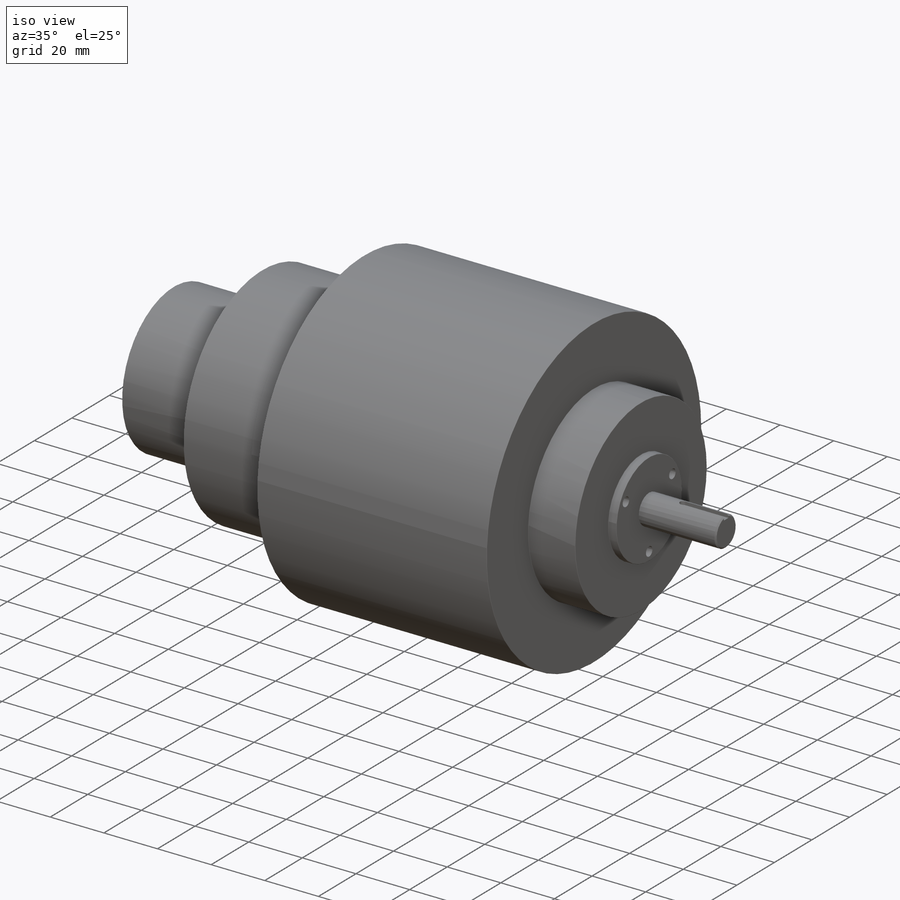
[diagram: iso view]
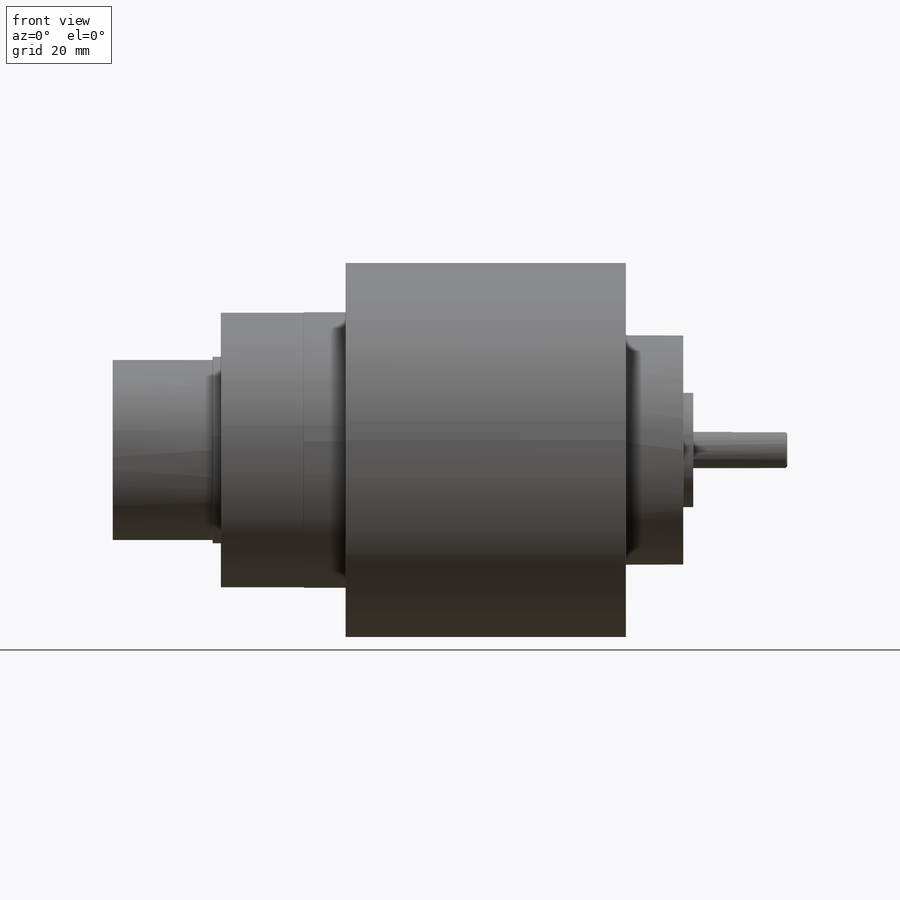
[diagram: front view]
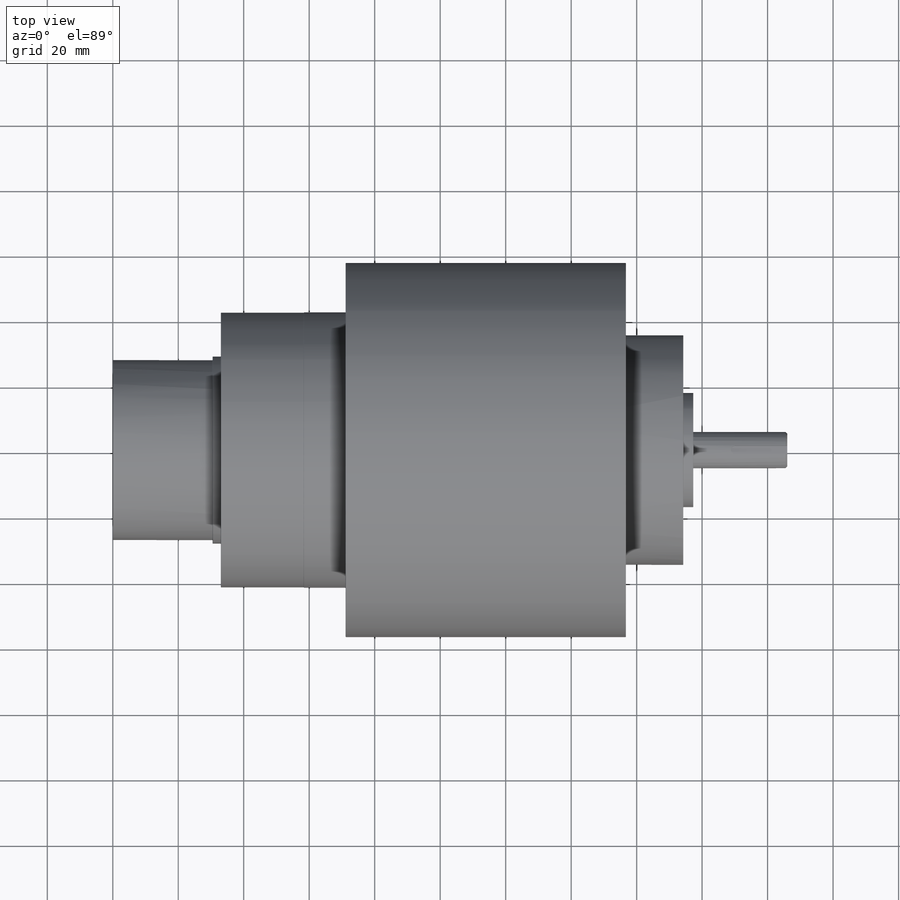
[diagram: top view]
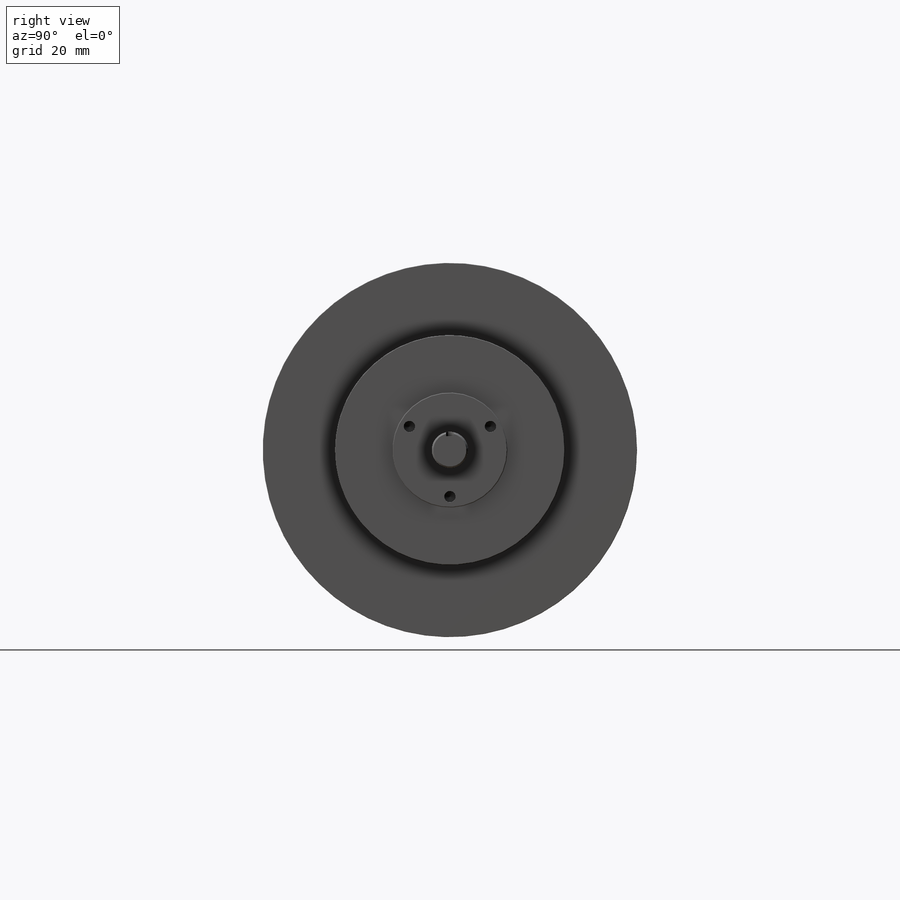
[diagram: right view]
SOLIDWORKS PART (.sldprt)
format: sldprt  version: not decoded by parser v0  size: 513,024 bytes
history: native  units: mm
features: sketch x14, plane x9, extrude x6, cut_extrude x4, hole x2, thread x2, pattern_circular x2, material x1, fillet x1, chamfer x1 (+16 scaffold rows collapsed)
feature tree (58):
  scaffold x16  (default folders/planes/origin — collapsed)
  material  "Material <not specified>"
  plane  "A"  Offset=205.994mm
  plane  "F"  Offset=33.02mm
  sketch  "E"  dims[D1=57.15mm]
  extrude  "Boss-Extrude1"  [1 undecoded]
  sketch  "X"  dims[D2=54.991mm D1=0.0mm]
  cut_extrude  "Z"  Depth=30.5054mm
  plane  "G"  Offset=38.1mm
  sketch  "D"  dims[D1=84.1502mm]
  extrude  "Boss-Extrude2"  [1 undecoded]
  plane  "J"  Offset=12.7mm
  sketch  "Sketch5"  dims[D1=0.127mm]
  cut_extrude  "Cut-Extrude3"  [1 undecoded]
  plane  "H"  Offset=85.598mm
  sketch  "C"  dims[D1=114.3mm]
  extrude  "Boss-Extrude3"  [1 undecoded]
  sketch  "B"  dims[D1=48.006mm]
  cut_extrude  "P"  Depth=60.96mm
  plane  "L"  Offset=17.526mm
  sketch  "M"  dims[D1=70.104mm]
  extrude  "Boss-Extrude4"  [1 undecoded]
  plane  "K"  Offset=3.048mm
  sketch  "N"  dims[D1=34.925mm]
  extrude  "Boss-Extrude5"  [1 undecoded]
  sketch  "S"  dims[D1=11.0998mm]
  extrude  "Boss-Extrude6"  [1 undecoded]
  hole  "W"  Diameter=5.1054mm Depth=19.05mm
  sketch  "WBCD"  dims[D1=99.2124mm]
  sketch  "Sketch10"  dims[hole-wizard template sketch: 50 standard entries collapsed; hole parameters above]
  thread  "Hole Thread1"  Diameter=12.7mm  [1 undecoded]
  pattern_circular  "CirPattern1"  Count=6 Angle=360deg
  hole  "#8-32 Tapped Hole1"  Diameter=3.4544mm Depth=12.446mm
  sketch  "YBCD"  dims[D1=19.05mm D2=28.575mm]
  sketch  "Sketch12"  dims[hole-wizard template sketch: 47 standard entries collapsed; hole parameters kept: c15.Tap Drill Depth=12.446mm c15.D3=~14.816244mm c15.Drill Angle=118.0deg]
  thread  "Hole Thread2"  Diameter=8.382mm  [1 undecoded]
  pattern_circular  "CirPattern2"  Count=3 Angle=360deg
  plane  "Plane8"
  plane  "keyway depth"  Offset=1.3208mm
  sketch  "T"  dims[D1=2.3876mm D2=16.002mm]
  cut_extrude  "KEYWAY"  [1 undecoded]
  fillet  "Fillet1"  Radius=0.127mm
  chamfer  "Chamfer1"  Distance=0.508mm Angle=45deg
decode coverage: 24 of 32 modeling features carry decoded parameters
note: ~ marks probable driven/reference dimensions
note: 10 parameter values undecoded
summary: no parameter record found for 8 features
note: suppression state not decoded; provenance and decode notes live in map.json
